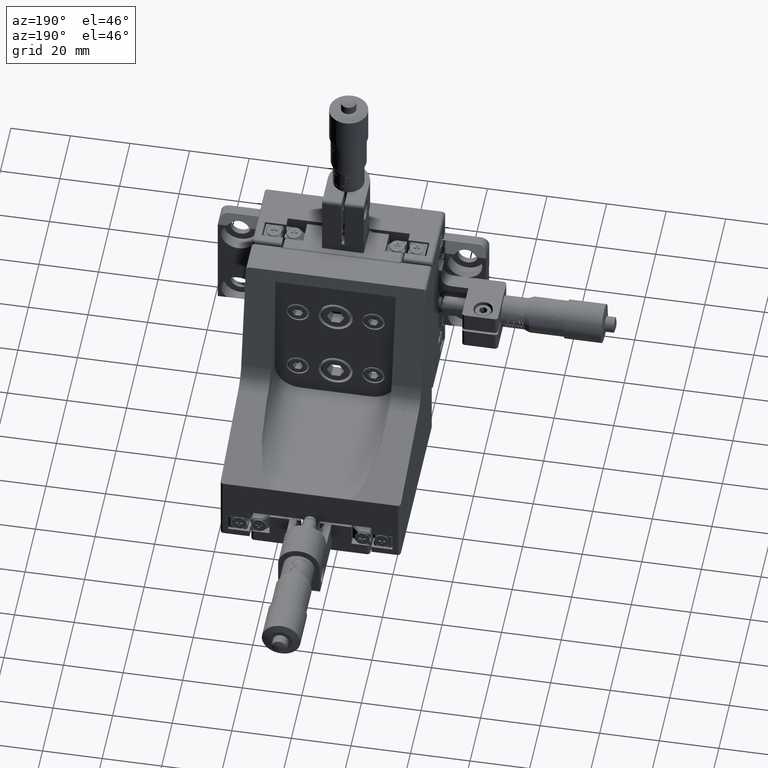
[diagram: clean part render]
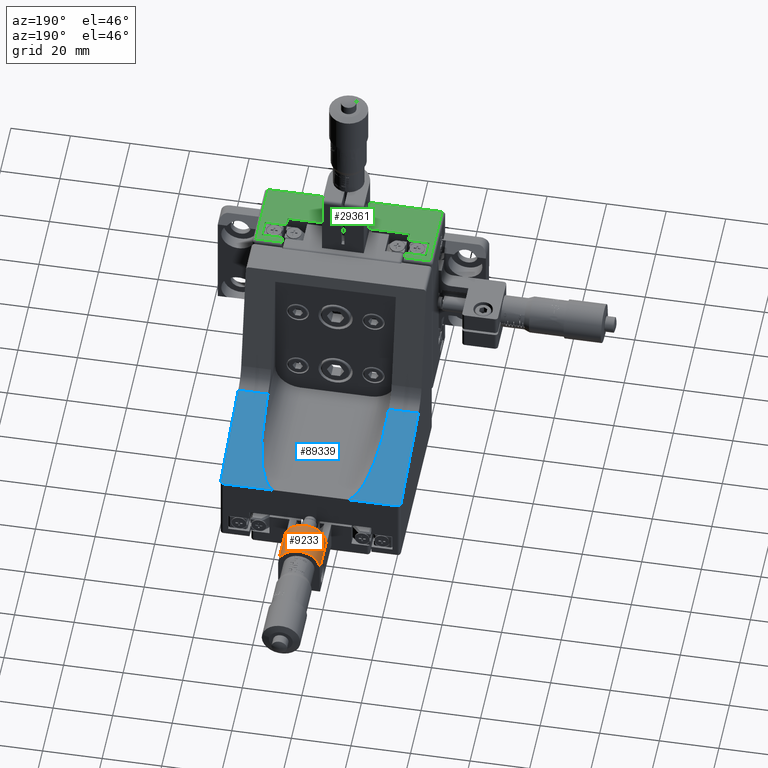
[diagram: same view with three faces highlighted in distinct colors, each labeled with its STEP entity id]
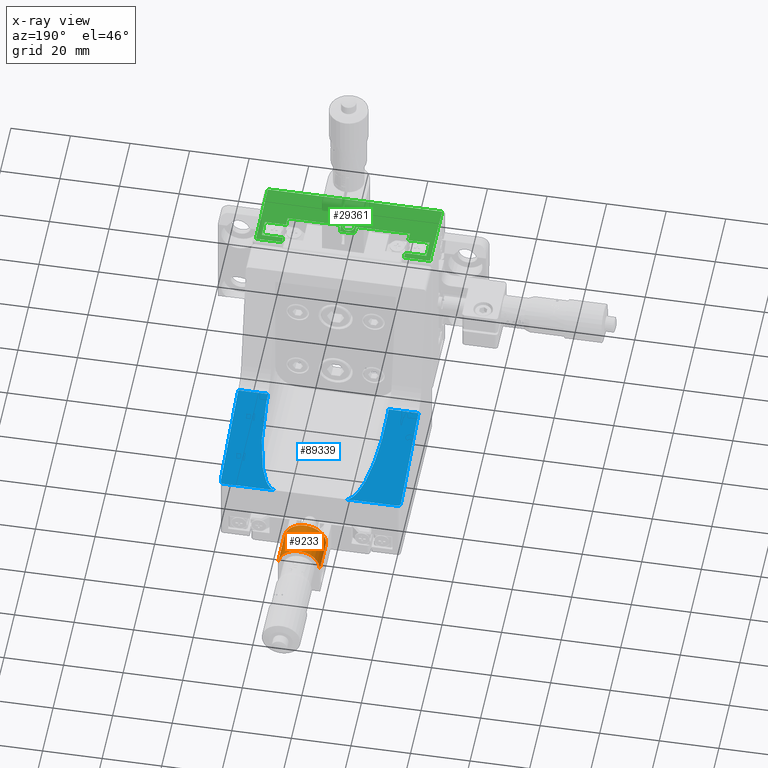
[diagram: x-ray of the same camera — body ghosted, the three highlighted faces saturated]
A machine part, auxiliary view with three faces highlighted in distinct colors.
The next image is the same camera in x-ray (body ghosted, the three faces saturated) — at least one of them is partly hidden behind the body in this view.
Their STEP definitions:

[orange] entity #9233 — the highlighted cylindrical surface (edge-blend (fillet) strip) has radius 7 mm, axis along (0, -1, 0).
#961 = ORIENTED_EDGE ( 'NONE', *, *, #50882, .F. ) ;
#2645 = CARTESIAN_POINT ( 'NONE',  ( 15.31603255245451000, 98.36820798943638500, -30.19247405631722700 ) ) ;
#6117 = CARTESIAN_POINT ( 'NONE',  ( 1.316032552454507300, 98.36820798943615800, -30.19247405631716300 ) ) ;
#6429 = CARTESIAN_POINT ( 'NONE',  ( 1.316032552454507300, 98.36820798943615800, -30.19247405631716300 ) ) ;
#6691 = LINE ( 'NONE', #6716, #23468 ) ;
#6708 = CARTESIAN_POINT ( 'NONE',  ( 1.316032552454694700, 86.36820798943615800, -30.19247405631715600 ) ) ;
#6716 = CARTESIAN_POINT ( 'NONE',  ( 15.31603255245451000, 98.36820798943638500, -30.19247405631722700 ) ) ;
#9233 = ADVANCED_FACE ( 'NONE', ( #47876 ), #38882, .T. ) ;
#11093 = VERTEX_POINT ( 'NONE', #6708 ) ;
#12694 = DIRECTION ( 'NONE',  ( 1.000000000000000000, 1.586032892321651600E-014, -4.460717509654645500E-015 ) ) ;
#15287 = VERTEX_POINT ( 'NONE', #68041 ) ;
#19538 = EDGE_CURVE ( 'NONE', #67167, #15287, #6691, .T. ) ;
#19547 = CARTESIAN_POINT ( 'NONE',  ( 8.316032552454510500, 98.36820798943627200, -30.19247405631719900 ) ) ;
#21257 = ORIENTED_EDGE ( 'NONE', *, *, #22384, .T. ) ;
#22384 = EDGE_CURVE ( 'NONE', #62988, #11093, #92286, .T. ) ;
#23468 = VECTOR ( 'NONE', #92130, 1000.000000000000000 ) ;
#24308 = CARTESIAN_POINT ( 'NONE',  ( 8.316032552454697000, 86.36820798943627200, -30.19247405631719500 ) ) ;
#24693 = AXIS2_PLACEMENT_3D ( 'NONE', #24308, #74217, #31484 ) ;
#25357 = ORIENTED_EDGE ( 'NONE', *, *, #82074, .F. ) ;
#31484 = DIRECTION ( 'NONE',  ( 1.000000000000000000, 1.586032892321651600E-014, -4.460717509654645500E-015 ) ) ;
#36144 = CIRCLE ( 'NONE', #24693, 7.000000000000002700 ) ;
#37692 = VECTOR ( 'NONE', #90820, 1000.000000000000000 ) ;
#38882 = CYLINDRICAL_SURFACE ( 'NONE', #54132, 7.000000000000002700 ) ;
#42732 = DIRECTION ( 'NONE',  ( -1.564113422114484000E-014, 1.000000000000000000, -1.925793886213381400E-016 ) ) ;
#47876 = FACE_OUTER_BOUND ( 'NONE', #79745, .T. ) ;
#50882 = EDGE_CURVE ( 'NONE', #62988, #67167, #67240, .T. ) ;
#54132 = AXIS2_PLACEMENT_3D ( 'NONE', #19547, #90663, #12694 ) ;
#62988 = VERTEX_POINT ( 'NONE', #6429 ) ;
#67167 = VERTEX_POINT ( 'NONE', #2645 ) ;
#67240 = CIRCLE ( 'NONE', #82295, 7.000000000000001800 ) ;
#68041 = CARTESIAN_POINT ( 'NONE',  ( 15.31603255245469700, 86.36820798943637100, -30.19247405631722000 ) ) ;
#74217 = DIRECTION ( 'NONE',  ( 1.564113422114484000E-014, -1.000000000000000000, 1.925793886213381400E-016 ) ) ;
#79745 = EDGE_LOOP ( 'NONE', ( #25357, #80090, #961, #21257 ) ) ;
#80090 = ORIENTED_EDGE ( 'NONE', *, *, #19538, .F. ) ;
#82074 = EDGE_CURVE ( 'NONE', #15287, #11093, #36144, .T. ) ;
#82295 = AXIS2_PLACEMENT_3D ( 'NONE', #85408, #42732, #92487 ) ;
#85408 = CARTESIAN_POINT ( 'NONE',  ( 8.316032552454510500, 98.36820798943627200, -30.19247405631719900 ) ) ;
#90663 = DIRECTION ( 'NONE',  ( 1.564113422114484000E-014, -1.000000000000000000, 1.925793886213381400E-016 ) ) ;
#90820 = DIRECTION ( 'NONE',  ( 1.564113422114484000E-014, -1.000000000000000000, 1.925793886213381400E-016 ) ) ;
#92130 = DIRECTION ( 'NONE',  ( 1.564113422114484000E-014, -1.000000000000000000, 1.925793886213381400E-016 ) ) ;
#92286 = LINE ( 'NONE', #6117, #37692 ) ;
#92487 = DIRECTION ( 'NONE',  ( -1.000000000000000000, -1.586032892321651900E-014, 4.460717509654645500E-015 ) ) ;

[blue] entity #89339 — the highlighted planar face has unit normal (-0, 0.2622, 0.965).
#58 = CARTESIAN_POINT ( 'NONE',  ( -21.93396744754398100, 76.20399442706305100, -18.37999133061607900 ) ) ;
#1090 = CARTESIAN_POINT ( 'NONE',  ( -21.93396744754398500, 42.31120798943612000, -9.172690338973867000 ) ) ;
#1799 = DIRECTION ( 'NONE',  ( 0.0000000000000000000, -0.9650248887684033100, 0.2621582805435118700 ) ) ;
#2165 =( BOUNDED_CURVE ( )  B_SPLINE_CURVE ( 3, ( #66631, #2287, #9766, #59770 ),
 .UNSPECIFIED., .F., .F. ) 
 B_SPLINE_CURVE_WITH_KNOTS ( ( 4, 4 ),
 ( 1.570796326794896600, 3.141592653589793100 ),
 .UNSPECIFIED. ) 
 CURVE ( )  GEOMETRIC_REPRESENTATION_ITEM ( )  RATIONAL_B_SPLINE_CURVE ( ( 1.000000000000000000, 0.8047378541243649400, 0.8047378541243649400, 1.000000000000000000 ) ) 
 REPRESENTATION_ITEM ( '' )  );
#2287 = CARTESIAN_POINT ( 'NONE',  ( 38.56603255245601500, 76.20399442706305100, -18.37999133061607900 ) ) ;
#3011 = LINE ( 'NONE', #80358, #55477 ) ;
#5560 = CARTESIAN_POINT ( 'NONE',  ( 28.56603255245599700, 76.61820798943614400, -18.49251642354722600 ) ) ;
#6704 = DIRECTION ( 'NONE',  ( -1.000000000000000000, -1.086919347157027200E-015, 2.952720810173287600E-016 ) ) ;
#6754 = VERTEX_POINT ( 'NONE', #53957 ) ;
#8496 = CARTESIAN_POINT ( 'NONE',  ( -21.93396744754398500, 76.61820798943614400, -18.49251642354722200 ) ) ;
#8771 = CARTESIAN_POINT ( 'NONE',  ( -3.433967447543991200, 76.61805203238859000, -18.49247405631721400 ) ) ;
#8981 = ORIENTED_EDGE ( 'NONE', *, *, #18141, .F. ) ;
#9766 = CARTESIAN_POINT ( 'NONE',  ( 38.15181899008290900, 76.61820798943614400, -18.49251642354722200 ) ) ;
#10402 = EDGE_CURVE ( 'NONE', #21479, #52026, #73465, .T. ) ;
#10463 = LINE ( 'NONE', #5560, #29431 ) ;
#10879 = DIRECTION ( 'NONE',  ( 0.0000000000000000000, -0.9650248887684033100, 0.2621582805435118700 ) ) ;
#12247 = VECTOR ( 'NONE', #82082, 1000.000000000000100 ) ;
#13257 = ORIENTED_EDGE ( 'NONE', *, *, #58774, .T. ) ;
#13551 = CARTESIAN_POINT ( 'NONE',  ( 28.56603255245600400, 42.31120798943612000, -9.172690338973874100 ) ) ;
#15057 = PLANE ( 'NONE',  #27156 ) ;
#15471 = DIRECTION ( 'NONE',  ( 1.000000000000000000, 0.0000000000000000000, 0.0000000000000000000 ) ) ;
#15685 = DIRECTION ( 'NONE',  ( 0.0000000000000000000, -0.9650248887684033100, 0.2621582805435118100 ) ) ;
#18141 = EDGE_CURVE ( 'NONE', #30515, #21479, #91943, .T. ) ;
#18735 = CARTESIAN_POINT ( 'NONE',  ( -11.93396744754397800, 63.65765891767451000, -14.97165877614590300 ) ) ;
#21479 = VERTEX_POINT ( 'NONE', #8771 ) ;
#26490 = VECTOR ( 'NONE', #1799, 1000.000000000000200 ) ;
#27074 = CARTESIAN_POINT ( 'NONE',  ( -21.93396744754398500, 42.31120798943612000, -9.172690338973867000 ) ) ;
#27156 = AXIS2_PLACEMENT_3D ( 'NONE', #8496, #58466, #15685 ) ;
#27210 = VECTOR ( 'NONE', #10879, 1000.000000000000200 ) ;
#27234 = CARTESIAN_POINT ( 'NONE',  ( 20.06603255245601500, 76.61805203238861800, -18.49247405631722400 ) ) ;
#28578 = EDGE_CURVE ( 'NONE', #91737, #89973, #64452, .T. ) ;
#29431 = VECTOR ( 'NONE', #48362, 1000.000000000000100 ) ;
#30145 =( BOUNDED_CURVE ( )  B_SPLINE_CURVE ( 3, ( #35637, #78375, #58, #50046 ),
 .UNSPECIFIED., .F., .F. ) 
 B_SPLINE_CURVE_WITH_KNOTS ( ( 4, 4 ),
 ( 0.0000000000000000000, 1.570796326794896600 ),
 .UNSPECIFIED. ) 
 CURVE ( )  GEOMETRIC_REPRESENTATION_ITEM ( )  RATIONAL_B_SPLINE_CURVE ( ( 1.000000000000000000, 0.8047378541243649400, 0.8047378541243649400, 1.000000000000000000 ) ) 
 REPRESENTATION_ITEM ( '' )  );
#30515 = VERTEX_POINT ( 'NONE', #27234 ) ;
#30763 = VECTOR ( 'NONE', #43388, 1000.000000000000000 ) ;
#31670 = CARTESIAN_POINT ( 'NONE',  ( 38.56603255245601500, 42.31120798943612000, -9.172690338973867000 ) ) ;
#32944 = EDGE_CURVE ( 'NONE', #84640, #30515, #44436, .T. ) ;
#33116 = CARTESIAN_POINT ( 'NONE',  ( -11.93396744754397100, 45.32889520115902800, -9.992474056317229600 ) ) ;
#33495 = CARTESIAN_POINT ( 'NONE',  ( 20.06603255245601500, 76.61805203238861800, -18.49247405631722400 ) ) ;
#33543 = ORIENTED_EDGE ( 'NONE', *, *, #32944, .F. ) ;
#35130 = VERTEX_POINT ( 'NONE', #82499 ) ;
#35553 = VECTOR ( 'NONE', #15471, 1000.000000000000000 ) ;
#35637 = CARTESIAN_POINT ( 'NONE',  ( -20.93396744754398500, 76.61820798943614400, -18.49251642354722200 ) ) ;
#36288 = EDGE_CURVE ( 'NONE', #35130, #66592, #3011, .T. ) ;
#37884 = VERTEX_POINT ( 'NONE', #90883 ) ;
#37925 = DIRECTION ( 'NONE',  ( 1.000000000000000000, 0.0000000000000000000, 0.0000000000000000000 ) ) ;
#39376 = CARTESIAN_POINT ( 'NONE',  ( -11.93396744754396400, 76.61820798943614400, -18.49251642354722200 ) ) ;
#40661 = EDGE_CURVE ( 'NONE', #6754, #59793, #67460, .T. ) ;
#41879 = EDGE_LOOP ( 'NONE', ( #65833, #89580, #47455, #13257, #68677, #42526, #59187, #60132, #8981, #33543, #44093, #76812 ) ) ;
#42526 = ORIENTED_EDGE ( 'NONE', *, *, #86264, .T. ) ;
#43388 = DIRECTION ( 'NONE',  ( 1.000000000000000000, 0.0000000000000000000, 0.0000000000000000000 ) ) ;
#44093 = ORIENTED_EDGE ( 'NONE', *, *, #89954, .F. ) ;
#44436 =( BOUNDED_CURVE ( )  B_SPLINE_CURVE ( 3, ( #61959, #47571, #76190, #33495 ),
 .UNSPECIFIED., .F., .F. ) 
 B_SPLINE_CURVE_WITH_KNOTS ( ( 4, 4 ),
 ( 4.712388980384687900, 6.283185307179585300 ),
 .UNSPECIFIED. ) 
 CURVE ( )  GEOMETRIC_REPRESENTATION_ITEM ( )  RATIONAL_B_SPLINE_CURVE ( ( 1.000000000000000000, 0.8047378541243646000, 0.8047378541243646000, 1.000000000000000000 ) ) 
 REPRESENTATION_ITEM ( '' )  );
#44595 = CARTESIAN_POINT ( 'NONE',  ( -21.93396744754398500, 76.61820798943614400, -18.49251642354722200 ) ) ;
#47455 = ORIENTED_EDGE ( 'NONE', *, *, #36288, .F. ) ;
#47571 = CARTESIAN_POINT ( 'NONE',  ( 28.56603255245600800, 63.65765891767451700, -14.97165877614590600 ) ) ;
#48331 = CARTESIAN_POINT ( 'NONE',  ( 28.56603255245600400, 45.32889520115898600, -9.992474056317222500 ) ) ;
#48362 = DIRECTION ( 'NONE',  ( -1.635135725592965900E-016, 0.9650248887684033100, -0.2621582805435118100 ) ) ;
#49750 = LINE ( 'NONE', #50580, #30763 ) ;
#50046 = CARTESIAN_POINT ( 'NONE',  ( -21.93396744754398500, 75.61820798943614400, -18.22085681808555800 ) ) ;
#50229 = LINE ( 'NONE', #39376, #12247 ) ;
#50580 = CARTESIAN_POINT ( 'NONE',  ( -21.93396744754398500, 42.31120798943612000, -9.172690338973867000 ) ) ;
#51419 = VERTEX_POINT ( 'NONE', #13551 ) ;
#52026 = VERTEX_POINT ( 'NONE', #80869 ) ;
#52604 = FACE_OUTER_BOUND ( 'NONE', #41879, .T. ) ;
#53957 = CARTESIAN_POINT ( 'NONE',  ( 38.56603255245601500, 75.61820798943614400, -18.22085681808555800 ) ) ;
#55477 = VECTOR ( 'NONE', #37925, 1000.000000000000000 ) ;
#56970 = EDGE_CURVE ( 'NONE', #6754, #66592, #2165, .T. ) ;
#58466 = DIRECTION ( 'NONE',  ( -0.0000000000000000000, 0.2621582805435118700, 0.9650248887684034200 ) ) ;
#58774 = EDGE_CURVE ( 'NONE', #35130, #91737, #30145, .T. ) ;
#59187 = ORIENTED_EDGE ( 'NONE', *, *, #66338, .F. ) ;
#59770 = CARTESIAN_POINT ( 'NONE',  ( 37.56603255245600800, 76.61820798943614400, -18.49251642354722200 ) ) ;
#59793 = VERTEX_POINT ( 'NONE', #31670 ) ;
#60132 = ORIENTED_EDGE ( 'NONE', *, *, #10402, .F. ) ;
#60481 = EDGE_CURVE ( 'NONE', #51419, #59793, #49750, .T. ) ;
#61959 = CARTESIAN_POINT ( 'NONE',  ( 28.56603255245600400, 45.32889520115898600, -9.992474056317222500 ) ) ;
#64452 = LINE ( 'NONE', #44595, #26490 ) ;
#65833 = ORIENTED_EDGE ( 'NONE', *, *, #40661, .F. ) ;
#66338 = EDGE_CURVE ( 'NONE', #52026, #37884, #50229, .T. ) ;
#66592 = VERTEX_POINT ( 'NONE', #78578 ) ;
#66631 = CARTESIAN_POINT ( 'NONE',  ( 38.56603255245601500, 75.61820798943614400, -18.22085681808555800 ) ) ;
#67460 = LINE ( 'NONE', #89194, #27210 ) ;
#68677 = ORIENTED_EDGE ( 'NONE', *, *, #28578, .T. ) ;
#68734 = CARTESIAN_POINT ( 'NONE',  ( -8.413152167372672400, 76.61805203238854700, -18.49247405631721000 ) ) ;
#70728 = CARTESIAN_POINT ( 'NONE',  ( -21.93396744754398500, 76.61805203238856200, -18.49247405631720700 ) ) ;
#73067 = VECTOR ( 'NONE', #6704, 1000.000000000000000 ) ;
#73465 =( BOUNDED_CURVE ( )  B_SPLINE_CURVE ( 3, ( #75811, #68734, #18735, #33116 ),
 .UNSPECIFIED., .F., .F. ) 
 B_SPLINE_CURVE_WITH_KNOTS ( ( 4, 4 ),
 ( 0.0000000000000000000, 1.570796326794896100 ),
 .UNSPECIFIED. ) 
 CURVE ( )  GEOMETRIC_REPRESENTATION_ITEM ( )  RATIONAL_B_SPLINE_CURVE ( ( 1.000000000000000000, 0.8047378541243650500, 0.8047378541243650500, 1.000000000000000000 ) ) 
 REPRESENTATION_ITEM ( '' )  );
#75811 = CARTESIAN_POINT ( 'NONE',  ( -3.433967447543991200, 76.61805203238859000, -18.49247405631721400 ) ) ;
#76190 = CARTESIAN_POINT ( 'NONE',  ( 25.04521727228470600, 76.61805203238861800, -18.49247405631722800 ) ) ;
#76812 = ORIENTED_EDGE ( 'NONE', *, *, #60481, .T. ) ;
#78375 = CARTESIAN_POINT ( 'NONE',  ( -21.51975388517088600, 76.61820798943614400, -18.49251642354722200 ) ) ;
#78578 = CARTESIAN_POINT ( 'NONE',  ( 37.56603255245600800, 76.61820798943614400, -18.49251642354722200 ) ) ;
#80358 = CARTESIAN_POINT ( 'NONE',  ( -21.93396744754398500, 76.61820798943614400, -18.49251642354722200 ) ) ;
#80869 = CARTESIAN_POINT ( 'NONE',  ( -11.93396744754397100, 45.32889520115902800, -9.992474056317229600 ) ) ;
#82082 = DIRECTION ( 'NONE',  ( -2.043919656991208000E-016, -0.9650248887684033100, 0.2621582805435118100 ) ) ;
#82499 = CARTESIAN_POINT ( 'NONE',  ( -20.93396744754398500, 76.61820798943614400, -18.49251642354722200 ) ) ;
#84640 = VERTEX_POINT ( 'NONE', #48331 ) ;
#85228 = CARTESIAN_POINT ( 'NONE',  ( -21.93396744754398500, 75.61820798943614400, -18.22085681808555800 ) ) ;
#86264 = EDGE_CURVE ( 'NONE', #89973, #37884, #92405, .T. ) ;
#89194 = CARTESIAN_POINT ( 'NONE',  ( 38.56603255245601500, 76.61820798943614400, -18.49251642354722200 ) ) ;
#89339 = ADVANCED_FACE ( 'NONE', ( #52604 ), #15057, .T. ) ;
#89580 = ORIENTED_EDGE ( 'NONE', *, *, #56970, .T. ) ;
#89954 = EDGE_CURVE ( 'NONE', #51419, #84640, #10463, .T. ) ;
#89973 = VERTEX_POINT ( 'NONE', #27074 ) ;
#90883 = CARTESIAN_POINT ( 'NONE',  ( -11.93396744754397100, 42.31120798943612000, -9.172690338973867000 ) ) ;
#91737 = VERTEX_POINT ( 'NONE', #85228 ) ;
#91943 = LINE ( 'NONE', #70728, #73067 ) ;
#92405 = LINE ( 'NONE', #1090, #35553 ) ;

[green] entity #29361 — the highlighted planar face has unit normal (0, 0, -1).
#1164 = DIRECTION ( 'NONE',  ( 1.000000000000000000, 0.0000000000000000000, 0.0000000000000000000 ) ) ;
#1498 = VERTEX_POINT ( 'NONE', #31785 ) ;
#1581 = PLANE ( 'NONE',  #83105 ) ;
#1837 = CARTESIAN_POINT ( 'NONE',  ( 28.81603255245601500, 12.41820798943622800, 34.75752594368277900 ) ) ;
#3252 = LINE ( 'NONE', #20824, #38983 ) ;
#3513 = VERTEX_POINT ( 'NONE', #87334 ) ;
#4005 = VECTOR ( 'NONE', #37767, 1000.000000000000000 ) ;
#5007 = DIRECTION ( 'NONE',  ( -1.000000000000000000, 0.0000000000000000000, 0.0000000000000000000 ) ) ;
#5117 = CARTESIAN_POINT ( 'NONE',  ( 37.56603255245600800, 14.51820798943625400, 34.75752594368277900 ) ) ;
#5145 = VERTEX_POINT ( 'NONE', #78664 ) ;
#5497 = VECTOR ( 'NONE', #66698, 1000.000000000000000 ) ;
#6136 = CARTESIAN_POINT ( 'NONE',  ( 8.316032552456079000, 6.418207989436229600, 34.75752594368277900 ) ) ;
#6176 = ORIENTED_EDGE ( 'NONE', *, *, #73180, .F. ) ;
#8206 = VERTEX_POINT ( 'NONE', #29466 ) ;
#8248 = LINE ( 'NONE', #55785, #28174 ) ;
#8924 = EDGE_CURVE ( 'NONE', #8206, #53712, #33449, .T. ) ;
#11983 = ORIENTED_EDGE ( 'NONE', *, *, #41709, .F. ) ;
#12823 = ORIENTED_EDGE ( 'NONE', *, *, #27419, .T. ) ;
#13391 = CARTESIAN_POINT ( 'NONE',  ( -19.28396744754389400, -34.62815904985242100, 34.75752594368277900 ) ) ;
#13529 = VECTOR ( 'NONE', #71565, 1000.000000000000000 ) ;
#13621 = VERTEX_POINT ( 'NONE', #92307 ) ;
#13694 = DIRECTION ( 'NONE',  ( 0.0000000000000000000, 1.000000000000000000, -0.0000000000000000000 ) ) ;
#13763 = VERTEX_POINT ( 'NONE', #16247 ) ;
#14501 = AXIS2_PLACEMENT_3D ( 'NONE', #81813, #39103, #88981 ) ;
#15689 = CARTESIAN_POINT ( 'NONE',  ( 8.316032552456079000, 12.41820798943622800, 34.75752594368277900 ) ) ;
#15786 = LINE ( 'NONE', #86162, #13529 ) ;
#16247 = CARTESIAN_POINT ( 'NONE',  ( 10.81603255245612900, 3.418207989436234100, 34.75752594368277900 ) ) ;
#16701 = VERTEX_POINT ( 'NONE', #43020 ) ;
#16914 = VERTEX_POINT ( 'NONE', #39211 ) ;
#17092 = VECTOR ( 'NONE', #70700, 1000.000000000000000 ) ;
#17124 = ORIENTED_EDGE ( 'NONE', *, *, #49411, .T. ) ;
#17365 = FACE_BOUND ( 'NONE', #61774, .T. ) ;
#18784 = DIRECTION ( 'NONE',  ( 3.787479589216029900E-014, 1.000000000000000000, 0.0000000000000000000 ) ) ;
#18954 = DIRECTION ( 'NONE',  ( 0.0000000000000000000, 1.000000000000000000, -0.0000000000000000000 ) ) ;
#19105 = VERTEX_POINT ( 'NONE', #77896 ) ;
#20410 = EDGE_CURVE ( 'NONE', #16701, #30421, #3252, .T. ) ;
#20616 = LINE ( 'NONE', #91583, #54180 ) ;
#20824 = CARTESIAN_POINT ( 'NONE',  ( 37.56603255245600800, 15.51820798943625400, 34.75752594368277900 ) ) ;
#20991 = CARTESIAN_POINT ( 'NONE',  ( -12.18396744754398500, -34.62815904985242100, 34.75752594368277900 ) ) ;
#21440 = LINE ( 'NONE', #73475, #39401 ) ;
#22107 = CARTESIAN_POINT ( 'NONE',  ( 28.81603255245601500, -34.62815904985242100, 34.75752594368277900 ) ) ;
#22758 = VERTEX_POINT ( 'NONE', #66199 ) ;
#23289 = CARTESIAN_POINT ( 'NONE',  ( -19.28396744754389400, 12.41820798943622800, 34.75752594368277900 ) ) ;
#23389 = VERTEX_POINT ( 'NONE', #67004 ) ;
#23436 = DIRECTION ( 'NONE',  ( 0.0000000000000000000, 0.0000000000000000000, -1.000000000000000000 ) ) ;
#23568 = DIRECTION ( 'NONE',  ( 1.000000000000000000, 0.0000000000000000000, 0.0000000000000000000 ) ) ;
#24869 = CARTESIAN_POINT ( 'NONE',  ( -21.93396744754398100, -8.481792010563745900, 34.75752594368277900 ) ) ;
#26547 = ORIENTED_EDGE ( 'NONE', *, *, #8924, .F. ) ;
#26822 = VECTOR ( 'NONE', #39837, 1000.000000000000000 ) ;
#27399 = VERTEX_POINT ( 'NONE', #89399 ) ;
#27419 = EDGE_CURVE ( 'NONE', #34296, #13621, #31324, .T. ) ;
#28174 = VECTOR ( 'NONE', #41159, 1000.000000000000000 ) ;
#28218 = EDGE_CURVE ( 'NONE', #3513, #22758, #92349, .T. ) ;
#29025 = ORIENTED_EDGE ( 'NONE', *, *, #20410, .T. ) ;
#29361 = ADVANCED_FACE ( 'NONE', ( #17365, #72074 ), #1581, .F. ) ;
#29466 = CARTESIAN_POINT ( 'NONE',  ( 35.91603255245603800, 6.418207989436229600, 34.75752594368277900 ) ) ;
#30421 = VERTEX_POINT ( 'NONE', #5117 ) ;
#30665 = DIRECTION ( 'NONE',  ( 1.000000000000000000, 0.0000000000000000000, 0.0000000000000000000 ) ) ;
#31324 = LINE ( 'NONE', #75381, #26822 ) ;
#31728 = ORIENTED_EDGE ( 'NONE', *, *, #52394, .F. ) ;
#31785 = CARTESIAN_POINT ( 'NONE',  ( 5.816032552456129600, 6.418207989436229600, 34.75752594368277900 ) ) ;
#32306 = VECTOR ( 'NONE', #63572, 1000.000000000000000 ) ;
#32777 = CARTESIAN_POINT ( 'NONE',  ( -21.93396744754398100, 14.51820798943625400, 34.75752594368277900 ) ) ;
#33449 = LINE ( 'NONE', #85414, #85833 ) ;
#33568 = EDGE_CURVE ( 'NONE', #13763, #23389, #8248, .T. ) ;
#34055 = EDGE_CURVE ( 'NONE', #39916, #1498, #40526, .T. ) ;
#34296 = VERTEX_POINT ( 'NONE', #85480 ) ;
#35040 = VERTEX_POINT ( 'NONE', #23289 ) ;
#35420 = EDGE_CURVE ( 'NONE', #84378, #53712, #41242, .T. ) ;
#36367 = ORIENTED_EDGE ( 'NONE', *, *, #38655, .F. ) ;
#36754 = CARTESIAN_POINT ( 'NONE',  ( 28.81603255245601500, 6.418207989436229600, 34.75752594368277900 ) ) ;
#37767 = DIRECTION ( 'NONE',  ( 1.000000000000000000, 0.0000000000000000000, 0.0000000000000000000 ) ) ;
#38598 = ORIENTED_EDGE ( 'NONE', *, *, #58823, .F. ) ;
#38655 = EDGE_CURVE ( 'NONE', #59849, #39916, #45180, .T. ) ;
#38983 = VECTOR ( 'NONE', #77629, 1000.000000000000000 ) ;
#39041 = CARTESIAN_POINT ( 'NONE',  ( 8.316032552456016800, 3.618207989436229300, 34.75752594368277900 ) ) ;
#39103 = DIRECTION ( 'NONE',  ( 0.0000000000000000000, 0.0000000000000000000, 1.000000000000000000 ) ) ;
#39211 = CARTESIAN_POINT ( 'NONE',  ( -12.18396744754398500, 6.418207989436229600, 34.75752594368277900 ) ) ;
#39401 = VECTOR ( 'NONE', #23568, 1000.000000000000000 ) ;
#39404 = AXIS2_PLACEMENT_3D ( 'NONE', #39041, #88929, #46242 ) ;
#39612 = ORIENTED_EDGE ( 'NONE', *, *, #51237, .T. ) ;
#39837 = DIRECTION ( 'NONE',  ( 0.0000000000000000000, -1.000000000000000000, 0.0000000000000000000 ) ) ;
#39916 = VERTEX_POINT ( 'NONE', #42414 ) ;
#40526 = LINE ( 'NONE', #54393, #76208 ) ;
#40566 = VECTOR ( 'NONE', #82643, 1000.000000000000000 ) ;
#40584 = CARTESIAN_POINT ( 'NONE',  ( -21.93396744754398100, 14.51820798943625400, 34.75752594368277900 ) ) ;
#41159 = DIRECTION ( 'NONE',  ( 1.000000000000000000, 0.0000000000000000000, 0.0000000000000000000 ) ) ;
#41242 = LINE ( 'NONE', #15689, #60266 ) ;
#41709 = EDGE_CURVE ( 'NONE', #22758, #3513, #67293, .T. ) ;
#42414 = CARTESIAN_POINT ( 'NONE',  ( 5.816032552456015000, 3.418207989436230500, 34.75752594368277900 ) ) ;
#42737 = DIRECTION ( 'NONE',  ( 0.0000000000000000000, 1.000000000000000000, -0.0000000000000000000 ) ) ;
#43020 = CARTESIAN_POINT ( 'NONE',  ( 37.56603255245600800, -8.481792010563745900, 34.75752594368277900 ) ) ;
#43985 = CARTESIAN_POINT ( 'NONE',  ( 8.316032552456079000, 3.418207989436234100, 34.75752594368277900 ) ) ;
#44035 = ORIENTED_EDGE ( 'NONE', *, *, #44750, .T. ) ;
#44529 = ORIENTED_EDGE ( 'NONE', *, *, #71243, .T. ) ;
#44750 = EDGE_CURVE ( 'NONE', #59849, #16914, #71809, .T. ) ;
#45156 = CARTESIAN_POINT ( 'NONE',  ( 10.81603255245757100, -34.62815904985232200, 34.75752594368277900 ) ) ;
#45180 = LINE ( 'NONE', #43985, #62000 ) ;
#45600 = EDGE_CURVE ( 'NONE', #19105, #35040, #68176, .T. ) ;
#46242 = DIRECTION ( 'NONE',  ( 1.000000000000000000, 0.0000000000000000000, 0.0000000000000000000 ) ) ;
#49411 = EDGE_CURVE ( 'NONE', #35040, #56635, #61018, .T. ) ;
#50223 = ORIENTED_EDGE ( 'NONE', *, *, #67122, .F. ) ;
#50778 = EDGE_CURVE ( 'NONE', #27399, #34296, #78362, .T. ) ;
#51237 = EDGE_CURVE ( 'NONE', #13621, #16701, #64879, .T. ) ;
#52127 = ORIENTED_EDGE ( 'NONE', *, *, #54381, .T. ) ;
#52394 = EDGE_CURVE ( 'NONE', #84378, #88773, #65511, .T. ) ;
#52437 = VECTOR ( 'NONE', #18954, 1000.000000000000000 ) ;
#52783 = CARTESIAN_POINT ( 'NONE',  ( 28.81603255245601500, 14.51820798943625400, 34.75752594368277900 ) ) ;
#53712 = VERTEX_POINT ( 'NONE', #69950 ) ;
#53848 = CARTESIAN_POINT ( 'NONE',  ( -12.18396744754398500, 3.418207989436234100, 34.75752594368277900 ) ) ;
#54013 = ORIENTED_EDGE ( 'NONE', *, *, #45600, .T. ) ;
#54180 = VECTOR ( 'NONE', #84431, 1000.000000000000000 ) ;
#54381 = EDGE_CURVE ( 'NONE', #13763, #5145, #81394, .T. ) ;
#54393 = CARTESIAN_POINT ( 'NONE',  ( 5.816032552454574400, -34.62815904985232200, 34.75752594368277900 ) ) ;
#55785 = CARTESIAN_POINT ( 'NONE',  ( 8.316032552456079000, 3.418207989436234100, 34.75752594368277900 ) ) ;
#56635 = VERTEX_POINT ( 'NONE', #82543 ) ;
#56871 = EDGE_LOOP ( 'NONE', ( #92007, #84263, #12823, #39612, #29025, #44529, #31728, #63246, #26547, #64185, #6176, #59316, #52127, #38598, #71971, #36367, #44035, #50223, #54013, #17124 ) ) ;
#58823 = EDGE_CURVE ( 'NONE', #1498, #5145, #15786, .T. ) ;
#59316 = ORIENTED_EDGE ( 'NONE', *, *, #33568, .F. ) ;
#59337 = CARTESIAN_POINT ( 'NONE',  ( 8.316032552456079000, 12.41820798943622800, 34.75752594368277900 ) ) ;
#59465 = VECTOR ( 'NONE', #5007, 1000.000000000000000 ) ;
#59849 = VERTEX_POINT ( 'NONE', #53848 ) ;
#60266 = VECTOR ( 'NONE', #30665, 1000.000000000000000 ) ;
#61018 = LINE ( 'NONE', #59337, #4005 ) ;
#61774 = EDGE_LOOP ( 'NONE', ( #62153, #11983 ) ) ;
#62000 = VECTOR ( 'NONE', #1164, 1000.000000000000000 ) ;
#62153 = ORIENTED_EDGE ( 'NONE', *, *, #28218, .F. ) ;
#62706 = VECTOR ( 'NONE', #67652, 1000.000000000000000 ) ;
#63011 = EDGE_CURVE ( 'NONE', #75852, #8206, #70303, .T. ) ;
#63246 = ORIENTED_EDGE ( 'NONE', *, *, #35420, .T. ) ;
#63288 = VECTOR ( 'NONE', #72082, 1000.000000000000000 ) ;
#63572 = DIRECTION ( 'NONE',  ( 1.000000000000000000, 0.0000000000000000000, 0.0000000000000000000 ) ) ;
#64185 = ORIENTED_EDGE ( 'NONE', *, *, #63011, .F. ) ;
#64879 = LINE ( 'NONE', #24869, #62706 ) ;
#65511 = LINE ( 'NONE', #22107, #63288 ) ;
#66199 = CARTESIAN_POINT ( 'NONE',  ( 6.316032552456015900, 3.618207989436229800, 34.75752594368277900 ) ) ;
#66214 = CARTESIAN_POINT ( 'NONE',  ( -21.93396744754398100, 15.51820798943625400, 34.75752594368277900 ) ) ;
#66698 = DIRECTION ( 'NONE',  ( -3.787479589216029900E-014, 1.000000000000000000, 0.0000000000000000000 ) ) ;
#67004 = CARTESIAN_POINT ( 'NONE',  ( 28.81603255245601500, 3.418207989436234100, 34.75752594368277900 ) ) ;
#67122 = EDGE_CURVE ( 'NONE', #19105, #16914, #21440, .T. ) ;
#67293 = CIRCLE ( 'NONE', #14501, 2.000000000000000000 ) ;
#67652 = DIRECTION ( 'NONE',  ( 1.000000000000000000, 0.0000000000000000000, 0.0000000000000000000 ) ) ;
#68176 = LINE ( 'NONE', #13391, #84796 ) ;
#69950 = CARTESIAN_POINT ( 'NONE',  ( 35.91603255245603800, 12.41820798943622800, 34.75752594368277900 ) ) ;
#70303 = LINE ( 'NONE', #6136, #32306 ) ;
#70700 = DIRECTION ( 'NONE',  ( 0.0000000000000000000, 1.000000000000000000, -0.0000000000000000000 ) ) ;
#71243 = EDGE_CURVE ( 'NONE', #30421, #88773, #78467, .T. ) ;
#71565 = DIRECTION ( 'NONE',  ( 1.000000000000000000, 0.0000000000000000000, 0.0000000000000000000 ) ) ;
#71809 = LINE ( 'NONE', #20991, #17092 ) ;
#71971 = ORIENTED_EDGE ( 'NONE', *, *, #34055, .F. ) ;
#72074 = FACE_OUTER_BOUND ( 'NONE', #56871, .T. ) ;
#72082 = DIRECTION ( 'NONE',  ( 0.0000000000000000000, 1.000000000000000000, -0.0000000000000000000 ) ) ;
#73180 = EDGE_CURVE ( 'NONE', #23389, #75852, #90305, .T. ) ;
#73362 = DIRECTION ( 'NONE',  ( -1.000000000000000000, 0.0000000000000000000, -0.0000000000000000000 ) ) ;
#73475 = CARTESIAN_POINT ( 'NONE',  ( 8.316032552456079000, 6.418207989436229600, 34.75752594368277900 ) ) ;
#75381 = CARTESIAN_POINT ( 'NONE',  ( -20.93396744754398100, 15.51820798943625400, 34.75752594368277900 ) ) ;
#75442 = CARTESIAN_POINT ( 'NONE',  ( 28.81603255245601500, -34.62815904985242100, 34.75752594368277900 ) ) ;
#75852 = VERTEX_POINT ( 'NONE', #36754 ) ;
#76208 = VECTOR ( 'NONE', #18784, 1000.000000000000000 ) ;
#77629 = DIRECTION ( 'NONE',  ( 0.0000000000000000000, 1.000000000000000000, 0.0000000000000000000 ) ) ;
#77896 = CARTESIAN_POINT ( 'NONE',  ( -19.28396744754389400, 6.418207989436229600, 34.75752594368277900 ) ) ;
#78362 = LINE ( 'NONE', #40584, #59465 ) ;
#78467 = LINE ( 'NONE', #32777, #40566 ) ;
#78664 = CARTESIAN_POINT ( 'NONE',  ( 10.81603255245601700, 6.418207989436229600, 34.75752594368277900 ) ) ;
#81394 = LINE ( 'NONE', #45156, #5497 ) ;
#81813 = CARTESIAN_POINT ( 'NONE',  ( 8.316032552456016800, 3.618207989436229300, 34.75752594368277900 ) ) ;
#82543 = CARTESIAN_POINT ( 'NONE',  ( -12.18396744754398500, 12.41820798943622800, 34.75752594368277900 ) ) ;
#82643 = DIRECTION ( 'NONE',  ( -1.000000000000000000, 0.0000000000000000000, 0.0000000000000000000 ) ) ;
#83105 = AXIS2_PLACEMENT_3D ( 'NONE', #66214, #23436, #73362 ) ;
#84263 = ORIENTED_EDGE ( 'NONE', *, *, #50778, .T. ) ;
#84378 = VERTEX_POINT ( 'NONE', #1837 ) ;
#84431 = DIRECTION ( 'NONE',  ( 0.0000000000000000000, 1.000000000000000000, -0.0000000000000000000 ) ) ;
#84796 = VECTOR ( 'NONE', #13694, 1000.000000000000000 ) ;
#85414 = CARTESIAN_POINT ( 'NONE',  ( 35.91603255245603800, -34.62815904985242100, 34.75752594368277900 ) ) ;
#85480 = CARTESIAN_POINT ( 'NONE',  ( -20.93396744754398100, 14.51820798943625400, 34.75752594368277900 ) ) ;
#85833 = VECTOR ( 'NONE', #42737, 1000.000000000000000 ) ;
#86162 = CARTESIAN_POINT ( 'NONE',  ( 8.316032552456079000, 6.418207989436229600, 34.75752594368277900 ) ) ;
#87334 = CARTESIAN_POINT ( 'NONE',  ( 10.31603255245601700, 3.618207989436229300, 34.75752594368277900 ) ) ;
#87689 = EDGE_CURVE ( 'NONE', #56635, #27399, #20616, .T. ) ;
#88773 = VERTEX_POINT ( 'NONE', #52783 ) ;
#88929 = DIRECTION ( 'NONE',  ( 0.0000000000000000000, 0.0000000000000000000, 1.000000000000000000 ) ) ;
#88981 = DIRECTION ( 'NONE',  ( 1.000000000000000000, 0.0000000000000000000, 0.0000000000000000000 ) ) ;
#89399 = CARTESIAN_POINT ( 'NONE',  ( -12.18396744754398500, 14.51820798943625400, 34.75752594368277900 ) ) ;
#90305 = LINE ( 'NONE', #75442, #52437 ) ;
#91583 = CARTESIAN_POINT ( 'NONE',  ( -12.18396744754398500, -34.62815904985242100, 34.75752594368277900 ) ) ;
#92007 = ORIENTED_EDGE ( 'NONE', *, *, #87689, .T. ) ;
#92307 = CARTESIAN_POINT ( 'NONE',  ( -20.93396744754398100, -8.481792010563745900, 34.75752594368277900 ) ) ;
#92349 = CIRCLE ( 'NONE', #39404, 2.000000000000000000 ) ;